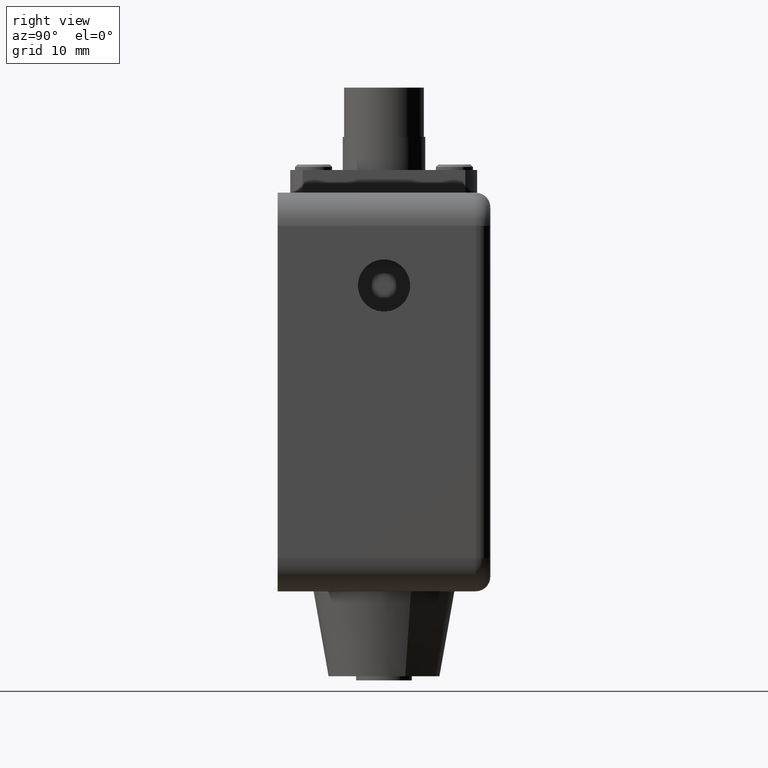
[diagram: clean part render]
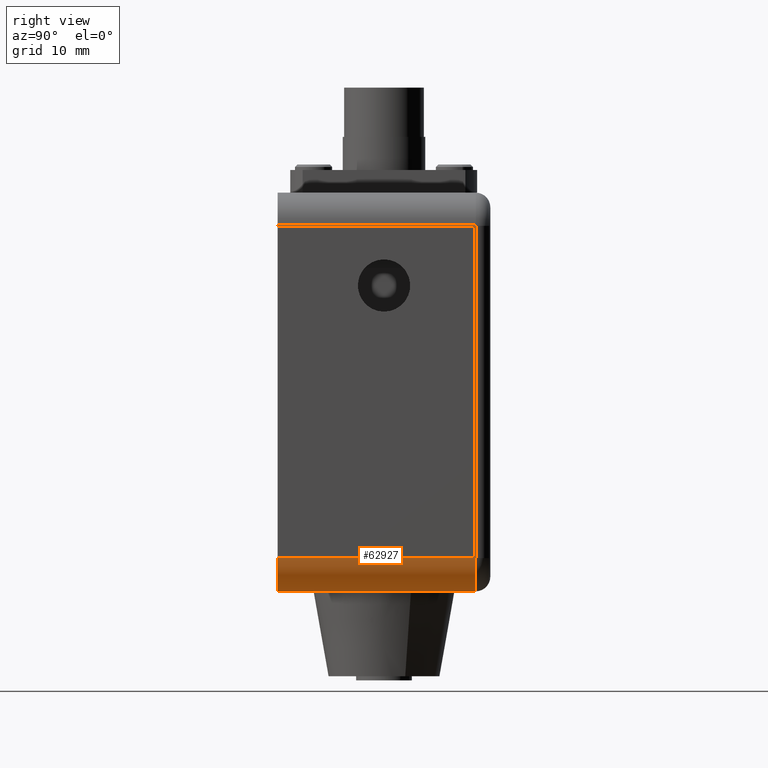
[diagram: same view with one face highlighted and labeled with its STEP entity id]
A machine part, right view. The second image highlights one B-rep face of the part: STEP entity #62927.
In plain terms, the highlighted cylindrical surface (edge-blend (fillet) strip) has radius 3.175 mm, axis along (0, -1, 0).
Its self-contained STEP definition (entity closure, byte-faithful):
#17701 = AXIS2_PLACEMENT_3D ( 'NONE', #26599, #26600, #26601 ) ;
#17715 = AXIS2_PLACEMENT_3D ( 'NONE', #26678, #26679, #26680 ) ;
#22389 = AXIS2_PLACEMENT_3D ( 'NONE', #58801, #58802, #58800 ) ;
#23091 = CIRCLE ( 'NONE', #17701, 0.1249999999999999000 ) ;
#23108 = CIRCLE ( 'NONE', #17715, 0.1249999999999999000 ) ;
#23157 = LINE ( 'NONE', #26644, #23161 ) ;
#23161 = VECTOR ( 'NONE', #26645, 39.37007874015748100 ) ;
#23171 = LINE ( 'NONE', #26653, #23175 ) ;
#23175 = VECTOR ( 'NONE', #26654, 39.37007874015748100 ) ;
#23177 = LINE ( 'NONE', #26662, #23181 ) ;
#23181 = VECTOR ( 'NONE', #26663, 39.37007874015748100 ) ;
#26599 = CARTESIAN_POINT ( 'NONE',  ( 0.5750000000000000700, 0.0000000000000000000, -1.375000000000000200 ) ) ;
#26600 = DIRECTION ( 'NONE',  ( 0.0000000000000000000, -1.000000000000000000, -0.0000000000000000000 ) ) ;
#26601 = DIRECTION ( 'NONE',  ( 0.0000000000000000000, 0.0000000000000000000, 1.000000000000000000 ) ) ;
#26644 = CARTESIAN_POINT ( 'NONE',  ( 0.6999999999999999600, 0.8000000000000000400, -1.375000000000000200 ) ) ;
#26645 = DIRECTION ( 'NONE',  ( -0.0000000000000000000, 1.000000000000000000, -0.0000000000000000000 ) ) ;
#26653 = CARTESIAN_POINT ( 'NONE',  ( 0.5750000000000000700, 0.8000000000000000400, -1.500000000000000200 ) ) ;
#26654 = DIRECTION ( 'NONE',  ( 0.0000000000000000000, -1.000000000000000000, 0.0000000000000000000 ) ) ;
#26662 = CARTESIAN_POINT ( 'NONE',  ( 0.5750000000000000700, 0.8000000000000000400, -1.500000000000000200 ) ) ;
#26663 = DIRECTION ( 'NONE',  ( 0.0000000000000000000, -1.000000000000000000, 0.0000000000000000000 ) ) ;
#26678 = CARTESIAN_POINT ( 'NONE',  ( 0.5750000000000000700, 0.7450000000000001100, -1.375000000000000200 ) ) ;
#26679 = DIRECTION ( 'NONE',  ( 0.0000000000000000000, -1.000000000000000000, -0.0000000000000000000 ) ) ;
#26680 = DIRECTION ( 'NONE',  ( 0.0000000000000000000, 0.0000000000000000000, 1.000000000000000000 ) ) ;
#53799 = FACE_OUTER_BOUND ( 'NONE', #94904, .T. ) ;
#53809 = CYLINDRICAL_SURFACE ( 'NONE', #22389, 0.1249999999999999000 ) ;
#58800 = DIRECTION ( 'NONE',  ( 0.0000000000000000000, 0.0000000000000000000, -1.000000000000000000 ) ) ;
#58801 = CARTESIAN_POINT ( 'NONE',  ( 0.5750000000000000700, 0.8000000000000000400, -1.375000000000000200 ) ) ;
#58802 = DIRECTION ( 'NONE',  ( 0.0000000000000000000, -1.000000000000000000, 0.0000000000000000000 ) ) ;
#62927 = ADVANCED_FACE ( 'NONE', ( #53799 ), #53809, .T. ) ;
#67146 = EDGE_CURVE ( 'NONE', #93986, #93989, #23091, .T. ) ;
#67218 = EDGE_CURVE ( 'NONE', #93989, #94001, #23157, .T. ) ;
#67231 = EDGE_CURVE ( 'NONE', #93990, #93127, #23171, .T. ) ;
#67237 = EDGE_CURVE ( 'NONE', #93127, #93986, #23177, .T. ) ;
#67251 = EDGE_CURVE ( 'NONE', #93990, #94001, #23108, .T. ) ;
#82249 = ORIENTED_EDGE ( 'NONE', *, *, #67231, .F. ) ;
#82250 = ORIENTED_EDGE ( 'NONE', *, *, #67251, .T. ) ;
#82251 = ORIENTED_EDGE ( 'NONE', *, *, #67218, .F. ) ;
#82252 = ORIENTED_EDGE ( 'NONE', *, *, #67146, .F. ) ;
#82253 = ORIENTED_EDGE ( 'NONE', *, *, #67237, .F. ) ;
#87775 = CARTESIAN_POINT ( 'NONE',  ( 0.5750000000000000700, 0.4000000000000000200, -1.500000000000000200 ) ) ;
#88934 = CARTESIAN_POINT ( 'NONE',  ( 0.5750000000000000700, 0.0000000000000000000, -1.500000000000000200 ) ) ;
#88939 = CARTESIAN_POINT ( 'NONE',  ( 0.6999999999999999600, 0.0000000000000000000, -1.375000000000000200 ) ) ;
#88941 = CARTESIAN_POINT ( 'NONE',  ( 0.5750000000000000700, 0.7450000000000001100, -1.500000000000000200 ) ) ;
#88960 = CARTESIAN_POINT ( 'NONE',  ( 0.6999999999999999600, 0.7450000000000001100, -1.375000000000000200 ) ) ;
#93127 = VERTEX_POINT ( 'NONE', #87775 ) ;
#93986 = VERTEX_POINT ( 'NONE', #88934 ) ;
#93989 = VERTEX_POINT ( 'NONE', #88939 ) ;
#93990 = VERTEX_POINT ( 'NONE', #88941 ) ;
#94001 = VERTEX_POINT ( 'NONE', #88960 ) ;
#94904 = EDGE_LOOP ( 'NONE', ( #82249, #82250, #82251, #82252, #82253 ) ) ;